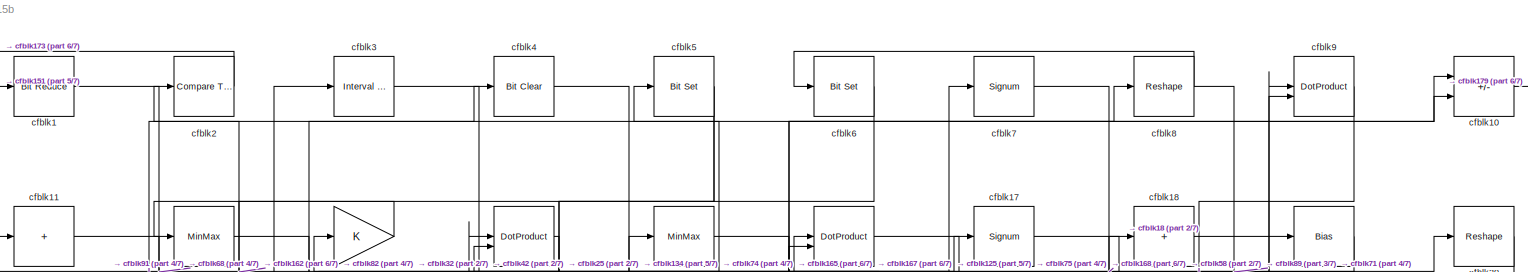
[diagram: root canvas - part 1/7, full width, top band]
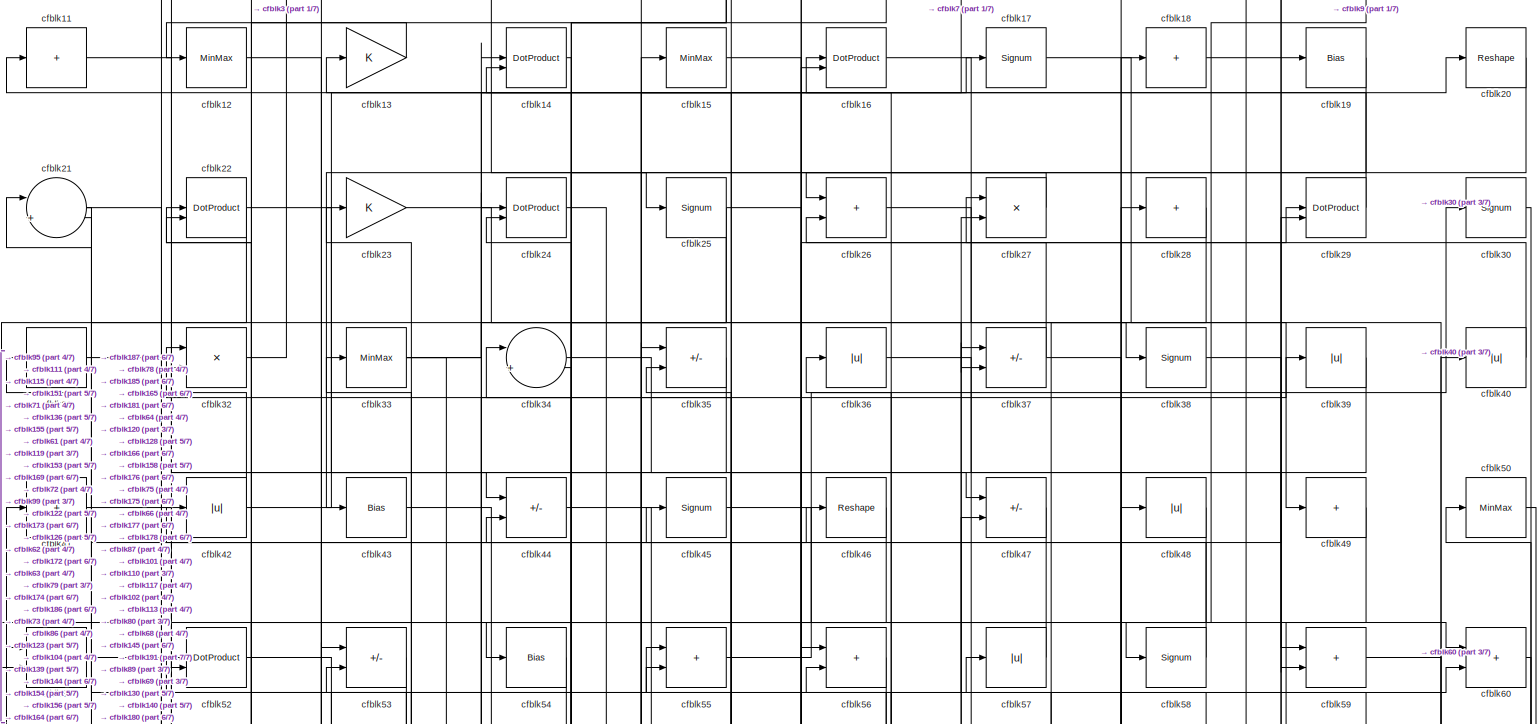
[diagram: root canvas - part 2/7, full width, top band]
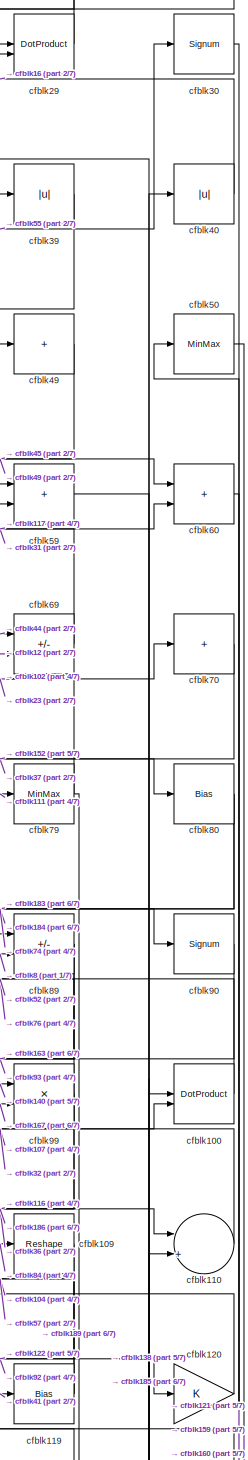
[diagram: root canvas - part 3/7, middle right region]
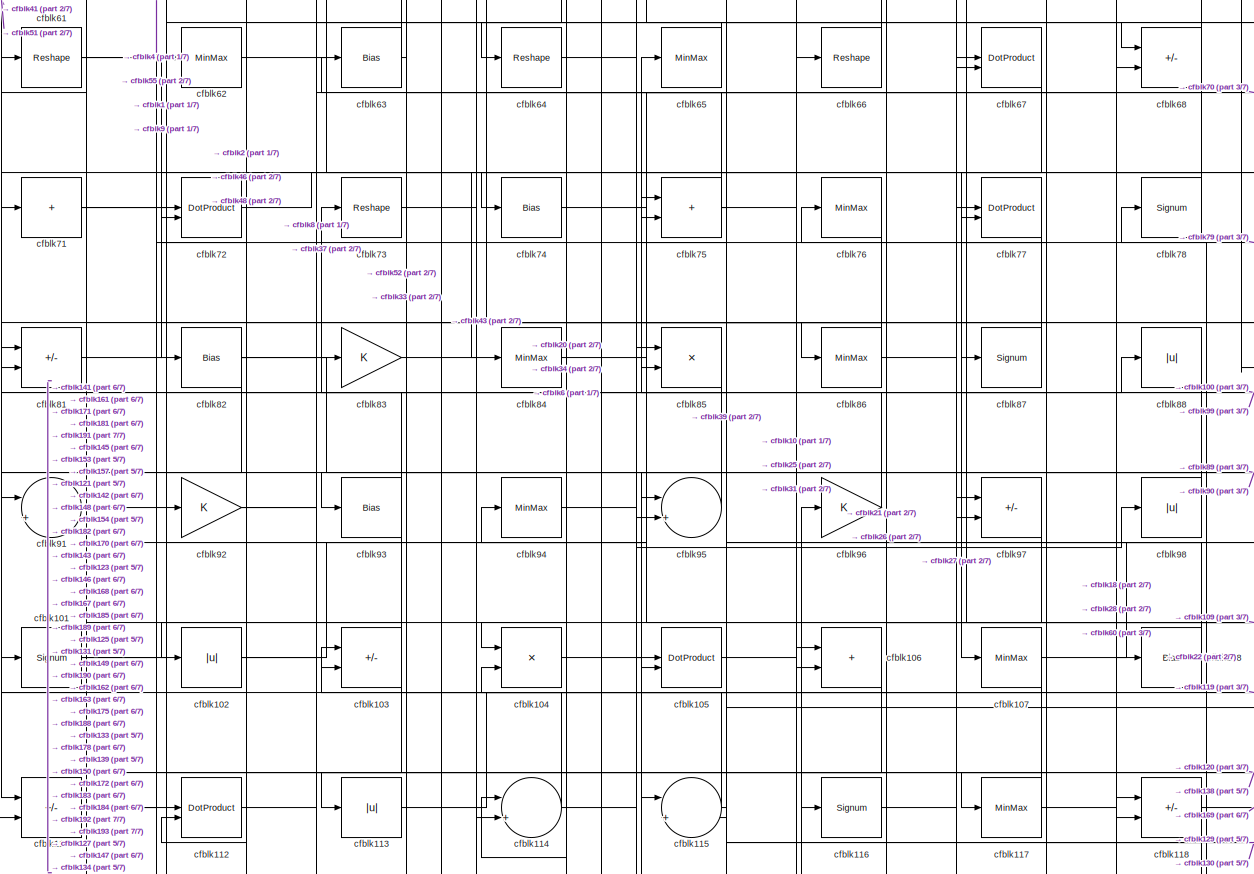
[diagram: root canvas - part 4/7, full width, middle band]
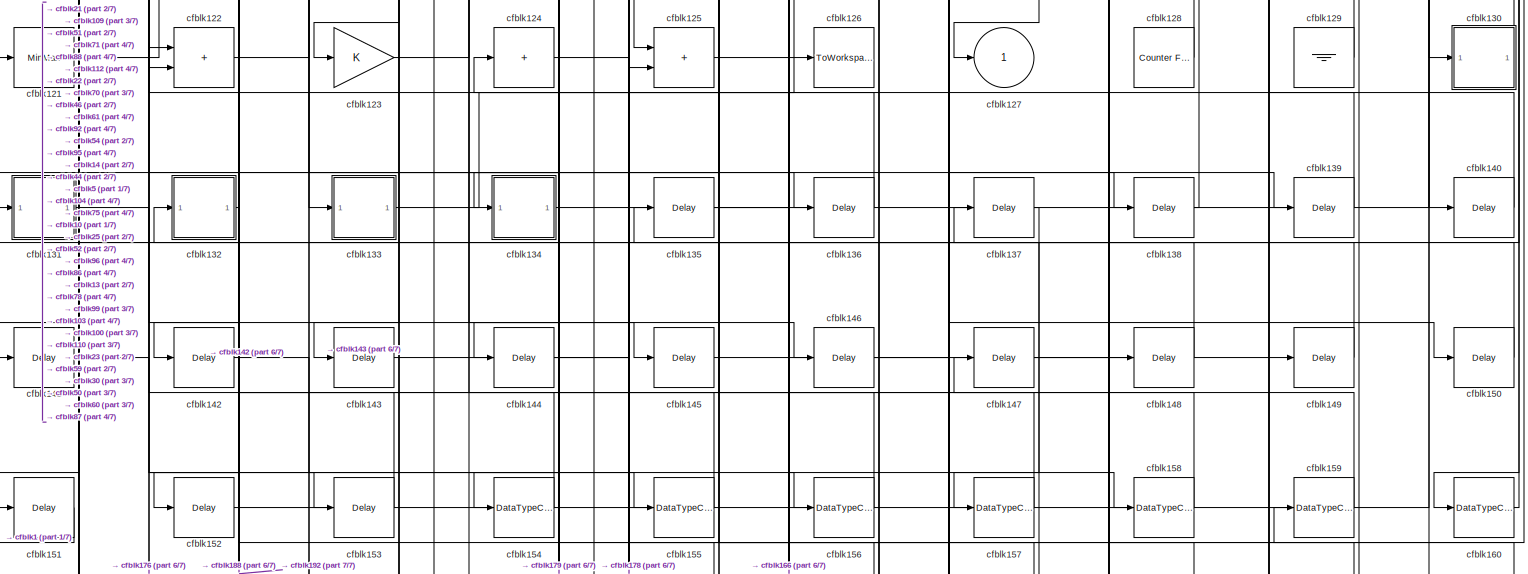
[diagram: root canvas - part 5/7, full width, bottom band]
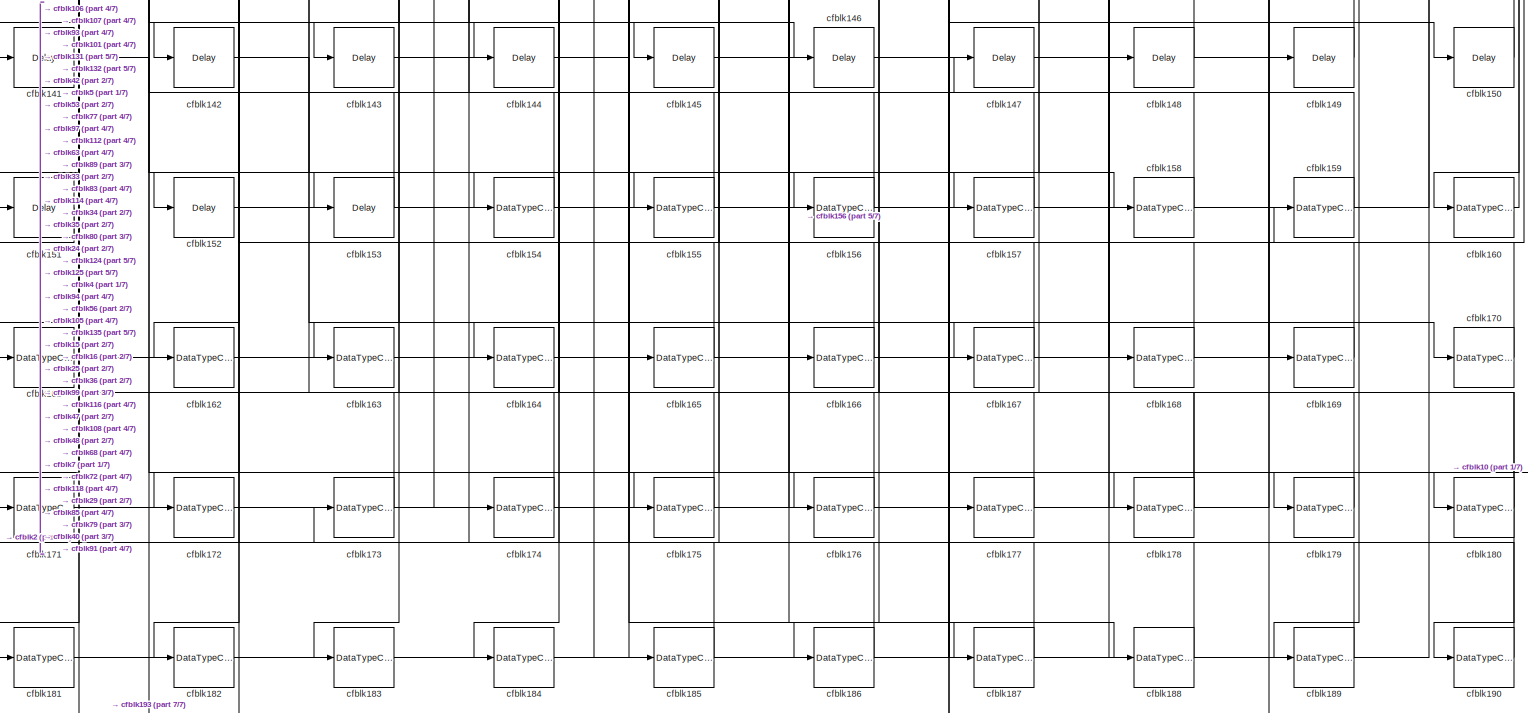
[diagram: root canvas - part 6/7, full width, bottom band]
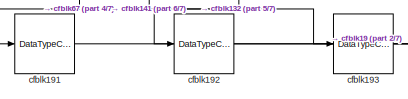
[diagram: root canvas - part 7/7, bottom left region]
MODEL slx_73f2b094a15b
KIND model
CONFIG AbsTol = auto
CONFIG EnableMultiTasking = off
CONFIG FixedStep = auto
CONFIG MaxStep = auto
CONFIG MinStep = auto
CONFIG RelTol = 1e-3
CONFIG SampleTimeConstraint = Unconstrained
CONFIG SolverName = VariableStepAuto
CONFIG StartTime = 0.0
CONFIG StopTime = 10.0
BLOCK [Reference] cfblk1  REF=hdlsllib/Logic and Bit
Operations/Bit Reduce
  SourceBlock = hdlsllib/Logic and Bit\nOperations/Bit Reduce
  SourceType = Bit Reduce
BLOCK [Sum] cfblk10
  IconShape = rectangular
  Inputs = +-
BLOCK [DotProduct] cfblk100
  OutDataTypeStr = Inherit: Inherit via internal rule
BLOCK [Signum] cfblk101
BLOCK [Abs] cfblk102
  SaturateOnIntegerOverflow = off
BLOCK [Sum] cfblk103
  IconShape = rectangular
  Inputs = +-
BLOCK [Product] cfblk104
  Inputs = */
  RndMeth = Zero
  SaturateOnIntegerOverflow = on
BLOCK [DotProduct] cfblk105
  OutDataTypeStr = Inherit: Inherit via internal rule
BLOCK [Sum] cfblk106
  IconShape = rectangular
BLOCK [MinMax] cfblk107
BLOCK [Bias] cfblk108
  Bias = 0.0
  SaturateOnIntegerOverflow = off
BLOCK [Reshape] cfblk109
BLOCK [Sum] cfblk11
  IconShape = rectangular
  Inputs = +
BLOCK [Sum] cfblk110
  Inputs = |++
BLOCK [Sum] cfblk111
  IconShape = rectangular
  Inputs = +-
BLOCK [DotProduct] cfblk112
  OutDataTypeStr = Inherit: Inherit via internal rule
BLOCK [Abs] cfblk113
  SaturateOnIntegerOverflow = off
BLOCK [Sum] cfblk114
  Inputs = |++
BLOCK [Sum] cfblk115
  Inputs = |++
BLOCK [Signum] cfblk116
BLOCK [MinMax] cfblk117
BLOCK [Sum] cfblk118
  IconShape = rectangular
  Inputs = +-
BLOCK [Bias] cfblk119
  Bias = 0.0
  SaturateOnIntegerOverflow = off
BLOCK [MinMax] cfblk12
BLOCK [Gain] cfblk120
BLOCK [MinMax] cfblk121
BLOCK [Sum] cfblk122
  IconShape = rectangular
BLOCK [Gain] cfblk123
BLOCK [Sum] cfblk124
  IconShape = rectangular
  Inputs = +
BLOCK [Sum] cfblk125
  IconShape = rectangular
BLOCK [ToWorkspace] cfblk126
  MaxDataPoints = inf
  SampleTime = -1
  SaveFormat = Timeseries
  VariableName = simout
BLOCK [Outport] cfblk127
  VectorParamsAs1DForOutWhenUnconnected = off
BLOCK [Reference] cfblk128  REF=hdlsllib/Sources/Counter
Free-Running
  SourceBlock = hdlsllib/Sources/Counter\nFree-Running
  SourceType = Counter Free-Running
BLOCK [Ground] cfblk129
BLOCK [Gain] cfblk13
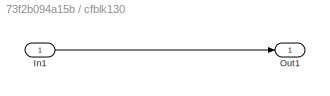
BLOCK [SubSystem] cfblk130
  LibrarySourceBlock = hdlsllib/Ports &\nSubsystems/Subsystem
BLOCK [Inport] cfblk130/In1
BLOCK [Outport] cfblk130/Out1
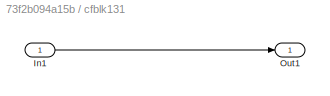
BLOCK [SubSystem] cfblk131
  LibrarySourceBlock = hdlsllib/Ports &\nSubsystems/Subsystem
BLOCK [Inport] cfblk131/In1
BLOCK [Outport] cfblk131/Out1
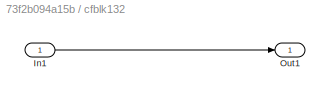
BLOCK [SubSystem] cfblk132
  LibrarySourceBlock = hdlsllib/Ports &\nSubsystems/Subsystem
BLOCK [Inport] cfblk132/In1
BLOCK [Outport] cfblk132/Out1
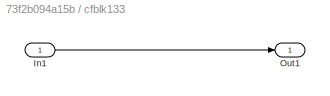
BLOCK [SubSystem] cfblk133
  LibrarySourceBlock = hdlsllib/Ports &\nSubsystems/Subsystem
BLOCK [Inport] cfblk133/In1
BLOCK [Outport] cfblk133/Out1
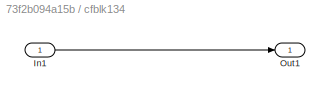
BLOCK [SubSystem] cfblk134
  LibrarySourceBlock = hdlsllib/Ports &\nSubsystems/Subsystem
BLOCK [Inport] cfblk134/In1
BLOCK [Outport] cfblk134/Out1
BLOCK [Delay] cfblk135
  InputPortMap = u0
  SampleTime = 1
BLOCK [Delay] cfblk136
  InputPortMap = u0
  SampleTime = 1
BLOCK [Delay] cfblk137
  InputPortMap = u0
  SampleTime = 1
BLOCK [Delay] cfblk138
  InputPortMap = u0
  SampleTime = 1
BLOCK [Delay] cfblk139
  InputPortMap = u0
  SampleTime = 1
BLOCK [DotProduct] cfblk14
  OutDataTypeStr = Inherit: Inherit via internal rule
BLOCK [Delay] cfblk140
  InputPortMap = u0
  SampleTime = 1
BLOCK [Delay] cfblk141
  InputPortMap = u0
  SampleTime = 1
BLOCK [Delay] cfblk142
  InputPortMap = u0
  SampleTime = 1
BLOCK [Delay] cfblk143
  InputPortMap = u0
  SampleTime = 1
BLOCK [Delay] cfblk144
  InputPortMap = u0
  SampleTime = 1
BLOCK [Delay] cfblk145
  InputPortMap = u0
  SampleTime = 1
BLOCK [Delay] cfblk146
  InputPortMap = u0
  SampleTime = 1
BLOCK [Delay] cfblk147
  InputPortMap = u0
  SampleTime = 1
BLOCK [Delay] cfblk148
  InputPortMap = u0
  SampleTime = 1
BLOCK [Delay] cfblk149
  InputPortMap = u0
  SampleTime = 1
BLOCK [MinMax] cfblk15
BLOCK [Delay] cfblk150
  InputPortMap = u0
  SampleTime = 1
BLOCK [Delay] cfblk151
  InputPortMap = u0
  SampleTime = 1
BLOCK [Delay] cfblk152
  InputPortMap = u0
  SampleTime = 1
BLOCK [Delay] cfblk153
  InputPortMap = u0
  SampleTime = 1
BLOCK [DataTypeConversion] cfblk154
  OutDataTypeStr = uint8
  RndMeth = Floor
  SaturateOnIntegerOverflow = off
BLOCK [DataTypeConversion] cfblk155
  OutDataTypeStr = uint8
  RndMeth = Floor
  SaturateOnIntegerOverflow = off
BLOCK [DataTypeConversion] cfblk156
  OutDataTypeStr = uint8
  RndMeth = Floor
  SaturateOnIntegerOverflow = off
BLOCK [DataTypeConversion] cfblk157
  OutDataTypeStr = uint8
  RndMeth = Floor
  SaturateOnIntegerOverflow = off
BLOCK [DataTypeConversion] cfblk158
  OutDataTypeStr = uint8
  RndMeth = Floor
  SaturateOnIntegerOverflow = off
BLOCK [DataTypeConversion] cfblk159
  OutDataTypeStr = uint8
  RndMeth = Floor
  SaturateOnIntegerOverflow = off
BLOCK [DotProduct] cfblk16
  OutDataTypeStr = Inherit: Inherit via internal rule
BLOCK [DataTypeConversion] cfblk160
  OutDataTypeStr = uint8
  RndMeth = Floor
  SaturateOnIntegerOverflow = off
BLOCK [DataTypeConversion] cfblk161
  OutDataTypeStr = uint8
  RndMeth = Floor
  SaturateOnIntegerOverflow = off
BLOCK [DataTypeConversion] cfblk162
  OutDataTypeStr = uint8
  RndMeth = Floor
  SaturateOnIntegerOverflow = off
BLOCK [DataTypeConversion] cfblk163
  OutDataTypeStr = uint8
  RndMeth = Floor
  SaturateOnIntegerOverflow = off
BLOCK [DataTypeConversion] cfblk164
  OutDataTypeStr = uint8
  RndMeth = Floor
  SaturateOnIntegerOverflow = off
BLOCK [DataTypeConversion] cfblk165
  OutDataTypeStr = uint8
  RndMeth = Floor
  SaturateOnIntegerOverflow = off
BLOCK [DataTypeConversion] cfblk166
  OutDataTypeStr = uint8
  RndMeth = Floor
  SaturateOnIntegerOverflow = off
BLOCK [DataTypeConversion] cfblk167
  RndMeth = Floor
  SaturateOnIntegerOverflow = off
BLOCK [DataTypeConversion] cfblk168
  OutDataTypeStr = uint8
  RndMeth = Floor
  SaturateOnIntegerOverflow = off
BLOCK [DataTypeConversion] cfblk169
  OutDataTypeStr = uint8
  RndMeth = Floor
  SaturateOnIntegerOverflow = off
BLOCK [Signum] cfblk17
BLOCK [DataTypeConversion] cfblk170
  OutDataTypeStr = uint8
  RndMeth = Floor
  SaturateOnIntegerOverflow = off
BLOCK [DataTypeConversion] cfblk171
  OutDataTypeStr = uint8
  RndMeth = Floor
  SaturateOnIntegerOverflow = off
BLOCK [DataTypeConversion] cfblk172
  RndMeth = Floor
  SaturateOnIntegerOverflow = off
BLOCK [DataTypeConversion] cfblk173
  OutDataTypeStr = uint8
  RndMeth = Floor
  SaturateOnIntegerOverflow = off
BLOCK [DataTypeConversion] cfblk174
  OutDataTypeStr = uint8
  RndMeth = Floor
  SaturateOnIntegerOverflow = off
BLOCK [DataTypeConversion] cfblk175
  RndMeth = Floor
  SaturateOnIntegerOverflow = off
BLOCK [DataTypeConversion] cfblk176
  OutDataTypeStr = uint8
  RndMeth = Floor
  SaturateOnIntegerOverflow = off
BLOCK [DataTypeConversion] cfblk177
  OutDataTypeStr = uint8
  RndMeth = Floor
  SaturateOnIntegerOverflow = off
BLOCK [DataTypeConversion] cfblk178
  RndMeth = Floor
  SaturateOnIntegerOverflow = off
BLOCK [DataTypeConversion] cfblk179
  OutDataTypeStr = uint8
  RndMeth = Floor
  SaturateOnIntegerOverflow = off
BLOCK [Sum] cfblk18
  IconShape = rectangular
  Inputs = +
BLOCK [DataTypeConversion] cfblk180
  RndMeth = Floor
  SaturateOnIntegerOverflow = off
BLOCK [DataTypeConversion] cfblk181
  OutDataTypeStr = uint8
  RndMeth = Floor
  SaturateOnIntegerOverflow = off
BLOCK [DataTypeConversion] cfblk182
  OutDataTypeStr = uint8
  RndMeth = Floor
  SaturateOnIntegerOverflow = off
BLOCK [DataTypeConversion] cfblk183
  OutDataTypeStr = uint8
  RndMeth = Floor
  SaturateOnIntegerOverflow = off
BLOCK [DataTypeConversion] cfblk184
  OutDataTypeStr = uint8
  RndMeth = Floor
  SaturateOnIntegerOverflow = off
BLOCK [DataTypeConversion] cfblk185
  RndMeth = Floor
  SaturateOnIntegerOverflow = off
BLOCK [DataTypeConversion] cfblk186
  OutDataTypeStr = uint8
  RndMeth = Floor
  SaturateOnIntegerOverflow = off
BLOCK [DataTypeConversion] cfblk187
  OutDataTypeStr = uint8
  RndMeth = Floor
  SaturateOnIntegerOverflow = off
BLOCK [DataTypeConversion] cfblk188
  OutDataTypeStr = uint8
  RndMeth = Floor
  SaturateOnIntegerOverflow = off
BLOCK [DataTypeConversion] cfblk189
  OutDataTypeStr = uint8
  RndMeth = Floor
  SaturateOnIntegerOverflow = off
BLOCK [Bias] cfblk19
  Bias = 0.0
  SaturateOnIntegerOverflow = off
BLOCK [DataTypeConversion] cfblk190
  OutDataTypeStr = uint8
  RndMeth = Floor
  SaturateOnIntegerOverflow = off
BLOCK [DataTypeConversion] cfblk191
  OutDataTypeStr = uint8
  RndMeth = Floor
  SaturateOnIntegerOverflow = off
BLOCK [DataTypeConversion] cfblk192
  OutDataTypeStr = uint8
  RndMeth = Floor
  SaturateOnIntegerOverflow = off
BLOCK [DataTypeConversion] cfblk193
  OutDataTypeStr = uint8
  RndMeth = Floor
  SaturateOnIntegerOverflow = off
BLOCK [Reference] cfblk2  REF=hdlsllib/Logic and Bit
Operations/Compare
To Constant
  SourceBlock = hdlsllib/Logic and Bit\nOperations/Compare\nTo Constant
  SourceType = Compare To Constant
BLOCK [Reshape] cfblk20
BLOCK [Sum] cfblk21
  Inputs = |++
BLOCK [DotProduct] cfblk22
  OutDataTypeStr = Inherit: Inherit via internal rule
BLOCK [Gain] cfblk23
BLOCK [DotProduct] cfblk24
  OutDataTypeStr = Inherit: Inherit via internal rule
BLOCK [Signum] cfblk25
BLOCK [Sum] cfblk26
  IconShape = rectangular
BLOCK [Product] cfblk27
  Inputs = */
  RndMeth = Zero
  SaturateOnIntegerOverflow = on
BLOCK [Sum] cfblk28
  IconShape = rectangular
  Inputs = +
BLOCK [DotProduct] cfblk29
  OutDataTypeStr = Inherit: Inherit via internal rule
BLOCK [Reference] cfblk3  REF=hdlsllib/Logic and Bit
Operations/Interval Test
  SourceBlock = hdlsllib/Logic and Bit\nOperations/Interval Test
  SourceType = Interval Test
BLOCK [Signum] cfblk30
BLOCK [Sum] cfblk31
  IconShape = rectangular
  Inputs = +
BLOCK [Product] cfblk32
  Inputs = */
  RndMeth = Zero
  SaturateOnIntegerOverflow = on
BLOCK [MinMax] cfblk33
BLOCK [Sum] cfblk34
  Inputs = |++
BLOCK [Sum] cfblk35
  IconShape = rectangular
  Inputs = +-
BLOCK [Abs] cfblk36
  SaturateOnIntegerOverflow = off
BLOCK [Sum] cfblk37
  IconShape = rectangular
  Inputs = +-
BLOCK [Signum] cfblk38
BLOCK [Abs] cfblk39
  SaturateOnIntegerOverflow = off
BLOCK [Reference] cfblk4  REF=simulink/Logic and Bit
Operations/Bit Clear
  LibrarySourceBlock = hdlsllib/Logic and Bit\nOperations/Bit Clear
  SourceBlock = simulink/Logic and Bit\nOperations/Bit Clear
  SourceType = Bit Clear
BLOCK [Abs] cfblk40
  SaturateOnIntegerOverflow = off
BLOCK [Sum] cfblk41
  IconShape = rectangular
  Inputs = +
BLOCK [Abs] cfblk42
  SaturateOnIntegerOverflow = off
BLOCK [Bias] cfblk43
  Bias = 0.0
  SaturateOnIntegerOverflow = off
BLOCK [Sum] cfblk44
  IconShape = rectangular
  Inputs = +-
BLOCK [Signum] cfblk45
BLOCK [Reshape] cfblk46
BLOCK [Sum] cfblk47
  IconShape = rectangular
  Inputs = +-
BLOCK [Abs] cfblk48
  SaturateOnIntegerOverflow = off
BLOCK [Sum] cfblk49
  IconShape = rectangular
  Inputs = +
BLOCK [Reference] cfblk5  REF=simulink/Logic and Bit
Operations/Bit Set
  LibrarySourceBlock = hdlsllib/Logic and Bit\nOperations/Bit Set
  SourceBlock = simulink/Logic and Bit\nOperations/Bit Set
  SourceType = Bit Set
BLOCK [MinMax] cfblk50
BLOCK [Sum] cfblk51
  IconShape = rectangular
BLOCK [DotProduct] cfblk52
  OutDataTypeStr = Inherit: Inherit via internal rule
BLOCK [Sum] cfblk53
  IconShape = rectangular
  Inputs = +-
BLOCK [Bias] cfblk54
  Bias = 0.0
  SaturateOnIntegerOverflow = off
BLOCK [Sum] cfblk55
  IconShape = rectangular
BLOCK [Sum] cfblk56
  IconShape = rectangular
BLOCK [Abs] cfblk57
  SaturateOnIntegerOverflow = off
BLOCK [Signum] cfblk58
BLOCK [Sum] cfblk59
  IconShape = rectangular
BLOCK [Reference] cfblk6  REF=simulink/Logic and Bit
Operations/Bit Set
  LibrarySourceBlock = hdlsllib/Logic and Bit\nOperations/Bit Set
  SourceBlock = simulink/Logic and Bit\nOperations/Bit Set
  SourceType = Bit Set
BLOCK [Sum] cfblk60
  IconShape = rectangular
BLOCK [Reshape] cfblk61
BLOCK [MinMax] cfblk62
BLOCK [Bias] cfblk63
  Bias = 0.0
  SaturateOnIntegerOverflow = off
BLOCK [Reshape] cfblk64
BLOCK [MinMax] cfblk65
BLOCK [Reshape] cfblk66
BLOCK [DotProduct] cfblk67
  OutDataTypeStr = Inherit: Inherit via internal rule
BLOCK [Sum] cfblk68
  IconShape = rectangular
  Inputs = +-
BLOCK [Sum] cfblk69
  IconShape = rectangular
  Inputs = +-
BLOCK [Signum] cfblk7
BLOCK [Sum] cfblk70
  IconShape = rectangular
  Inputs = +
BLOCK [Sum] cfblk71
  IconShape = rectangular
  Inputs = +
BLOCK [DotProduct] cfblk72
  OutDataTypeStr = Inherit: Inherit via internal rule
BLOCK [Reshape] cfblk73
BLOCK [Bias] cfblk74
  Bias = 0.0
  SaturateOnIntegerOverflow = off
BLOCK [Sum] cfblk75
  IconShape = rectangular
BLOCK [MinMax] cfblk76
BLOCK [DotProduct] cfblk77
  OutDataTypeStr = Inherit: Inherit via internal rule
BLOCK [Signum] cfblk78
BLOCK [MinMax] cfblk79
BLOCK [Reshape] cfblk8
BLOCK [Bias] cfblk80
  Bias = 0.0
  SaturateOnIntegerOverflow = off
BLOCK [Sum] cfblk81
  IconShape = rectangular
  Inputs = +-
BLOCK [Bias] cfblk82
  Bias = 0.0
  SaturateOnIntegerOverflow = off
BLOCK [Gain] cfblk83
BLOCK [MinMax] cfblk84
BLOCK [Product] cfblk85
  Inputs = */
  RndMeth = Zero
  SaturateOnIntegerOverflow = on
BLOCK [MinMax] cfblk86
BLOCK [Signum] cfblk87
BLOCK [Abs] cfblk88
  SaturateOnIntegerOverflow = off
BLOCK [Sum] cfblk89
  IconShape = rectangular
  Inputs = +-
BLOCK [DotProduct] cfblk9
  OutDataTypeStr = Inherit: Inherit via internal rule
BLOCK [Signum] cfblk90
BLOCK [Sum] cfblk91
  Inputs = |++
BLOCK [Gain] cfblk92
BLOCK [Bias] cfblk93
  Bias = 0.0
  SaturateOnIntegerOverflow = off
BLOCK [MinMax] cfblk94
BLOCK [Sum] cfblk95
  Inputs = |++
BLOCK [Gain] cfblk96
BLOCK [Sum] cfblk97
  IconShape = rectangular
  Inputs = +-
BLOCK [Abs] cfblk98
  SaturateOnIntegerOverflow = off
BLOCK [Product] cfblk99
  Inputs = */
  RndMeth = Zero
  SaturateOnIntegerOverflow = on
LINE cfblk100:1 -> cfblk76:1
NET cfblk101:1 -> cfblk145:1, cfblk27:2
NET cfblk102:1 -> cfblk28:1, cfblk70:1
NET cfblk103:1 -> cfblk113:1, cfblk61:1
LINE cfblk104:1 -> cfblk125:1
LINE cfblk105:1 -> cfblk188:1
LINE cfblk106:1 -> cfblk161:1
NET cfblk107:1 -> cfblk100:2, cfblk103:2, cfblk171:1
NET cfblk108:1 -> cfblk63:1, cfblk77:2
LINE cfblk109:1 -> cfblk122:2
LINE cfblk10:1 -> cfblk179:1
LINE cfblk110:1 -> cfblk32:1
NET cfblk111:1 -> cfblk79:1, cfblk92:1
LINE cfblk112:1 -> cfblk170:1
LINE cfblk113:1 -> cfblk18:1
NET cfblk114:1 -> cfblk83:1, cfblk98:1
NET cfblk115:1 -> cfblk41:1, cfblk75:2
LINE cfblk116:1 -> cfblk150:1
NET cfblk117:1 -> cfblk55:1, cfblk60:2
LINE cfblk118:1 -> cfblk169:1
NET cfblk119:1 -> cfblk104:2, cfblk57:1
LINE cfblk11:1 -> cfblk44:1
LINE cfblk120:1 -> cfblk45:1
LINE cfblk121:1 -> cfblk88:1
LINE cfblk122:1 -> cfblk46:1
LINE cfblk123:1 -> cfblk95:1
LINE cfblk124:1 -> cfblk178:1
LINE cfblk125:1 -> cfblk10:1
LINE cfblk128:1 -> cfblk13:1
LINE cfblk129:1 -> cfblk103:1
LINE cfblk12:1 -> cfblk69:2
LINE cfblk130/In1:1 -> cfblk130/Out1:1
LINE cfblk130:1 -> cfblk87:1
LINE cfblk131/In1:1 -> cfblk131/Out1:1
LINE cfblk131:1 -> cfblk176:1
LINE cfblk132/In1:1 -> cfblk132/Out1:1
LINE cfblk132:1 -> cfblk192:1
LINE cfblk133/In1:1 -> cfblk133/Out1:1
LINE cfblk133:1 -> cfblk96:1
LINE cfblk134/In1:1 -> cfblk134/Out1:1
LINE cfblk134:1 -> cfblk78:1
LINE cfblk135:1 -> cfblk166:1
LINE cfblk136:1 -> cfblk122:1
LINE cfblk137:1 -> cfblk157:1
LINE cfblk138:1 -> cfblk110:2
LINE cfblk139:1 -> cfblk44:2
LINE cfblk13:1 -> cfblk12:1
LINE cfblk140:1 -> cfblk99:1
LINE cfblk141:1 -> cfblk193:1
LINE cfblk142:1 -> cfblk156:1
LINE cfblk143:1 -> cfblk125:2
LINE cfblk144:1 -> cfblk187:1
LINE cfblk145:1 -> cfblk29:2
LINE cfblk146:1 -> cfblk177:1
LINE cfblk147:1 -> cfblk68:2
LINE cfblk148:1 -> cfblk72:2
LINE cfblk149:1 -> cfblk85:2
LINE cfblk14:1 -> cfblk154:1
LINE cfblk150:1 -> cfblk91:2
LINE cfblk151:1 -> cfblk1:1
LINE cfblk152:1 -> cfblk100:1
LINE cfblk153:1 -> cfblk22:2
LINE cfblk154:1 -> cfblk112:2
LINE cfblk155:1 -> cfblk14:1
LINE cfblk156:1 -> cfblk14:2
LINE cfblk157:1 -> cfblk112:1
LINE cfblk158:1 -> cfblk137:1
LINE cfblk159:1 -> cfblk135:1
LINE cfblk15:1 -> cfblk180:1
LINE cfblk160:1 -> cfblk50:1
LINE cfblk161:1 -> cfblk148:1
LINE cfblk162:1 -> cfblk106:1
LINE cfblk163:1 -> cfblk106:2
LINE cfblk164:1 -> cfblk48:1
LINE cfblk165:1 -> cfblk35:1
LINE cfblk166:1 -> cfblk35:2
NET cfblk167:1 -> cfblk5:1, cfblk99:2
LINE cfblk168:1 -> cfblk94:1
LINE cfblk169:1 -> cfblk42:1
LINE cfblk16:1 -> cfblk38:1
LINE cfblk170:1 -> cfblk118:1
LINE cfblk171:1 -> cfblk118:2
NET cfblk172:1 -> cfblk149:1, cfblk77:1
LINE cfblk173:1 -> cfblk53:1
LINE cfblk174:1 -> cfblk53:2
NET cfblk175:1 -> cfblk114:1, cfblk16:2
LINE cfblk176:1 -> cfblk56:1
LINE cfblk177:1 -> cfblk56:2
NET cfblk178:1 -> cfblk101:1, cfblk36:1
LINE cfblk179:1 -> cfblk124:1
LINE cfblk17:1 -> cfblk49:1
NET cfblk180:1 -> cfblk147:1, cfblk190:1, cfblk34:2
LINE cfblk181:1 -> cfblk15:1
LINE cfblk182:1 -> cfblk108:1
LINE cfblk183:1 -> cfblk97:1
LINE cfblk184:1 -> cfblk97:2
NET cfblk185:1 -> cfblk40:1, cfblk47:2, cfblk85:1
LINE cfblk186:1 -> cfblk24:1
LINE cfblk187:1 -> cfblk24:2
LINE cfblk188:1 -> cfblk132:1
LINE cfblk189:1 -> cfblk105:1
LINE cfblk18:1 -> cfblk9:1
LINE cfblk190:1 -> cfblk105:2
LINE cfblk191:1 -> cfblk19:1
LINE cfblk192:1 -> cfblk67:1
LINE cfblk193:1 -> cfblk67:2
LINE cfblk19:1 -> cfblk43:1
LINE cfblk1:1 -> cfblk68:1
LINE cfblk20:1 -> cfblk104:1
NET cfblk21:1 -> cfblk151:1, cfblk155:1
NET cfblk22:1 -> cfblk71:1, cfblk95:2
LINE cfblk23:1 -> cfblk130:1
LINE cfblk24:1 -> cfblk185:1
NET cfblk25:1 -> cfblk111:2, cfblk144:1, cfblk158:1
LINE cfblk26:1 -> cfblk59:1
LINE cfblk27:1 -> cfblk26:1
LINE cfblk28:1 -> cfblk117:1
LINE cfblk29:1 -> cfblk11:1
LINE cfblk2:1 -> cfblk173:1
LINE cfblk30:1 -> cfblk160:1
LINE cfblk31:1 -> cfblk66:1
LINE cfblk32:1 -> cfblk3:1
NET cfblk33:1 -> cfblk174:1, cfblk17:1, cfblk37:2
LINE cfblk34:1 -> cfblk47:1
LINE cfblk35:1 -> cfblk164:1
LINE cfblk36:1 -> cfblk110:1
NET cfblk37:1 -> cfblk27:1, cfblk80:1
LINE cfblk38:1 -> cfblk59:2
LINE cfblk39:1 -> cfblk115:2
LINE cfblk3:1 -> cfblk25:1
LINE cfblk40:1 -> cfblk16:1
LINE cfblk41:1 -> cfblk119:1
NET cfblk42:1 -> cfblk32:2, cfblk7:1
LINE cfblk43:1 -> cfblk86:1
LINE cfblk44:1 -> cfblk69:1
LINE cfblk45:1 -> cfblk60:1
LINE cfblk46:1 -> cfblk102:1
LINE cfblk47:1 -> cfblk51:2
LINE cfblk48:1 -> cfblk72:1
LINE cfblk49:1 -> cfblk89:1
LINE cfblk4:1 -> cfblk165:1
LINE cfblk50:1 -> cfblk159:1
LINE cfblk51:1 -> cfblk136:1
LINE cfblk52:1 -> cfblk126:1
LINE cfblk53:1 -> cfblk172:1
LINE cfblk54:1 -> cfblk123:1
NET cfblk55:1 -> cfblk29:1, cfblk30:1
LINE cfblk56:1 -> cfblk175:1
LINE cfblk57:1 -> cfblk54:1
LINE cfblk58:1 -> cfblk21:2
LINE cfblk59:1 -> cfblk140:1
NET cfblk5:1 -> cfblk134:1, cfblk162:1
LINE cfblk60:1 -> cfblk121:1
NET cfblk61:1 -> cfblk133:1, cfblk55:2
LINE cfblk62:1 -> cfblk37:1
NET cfblk63:1 -> cfblk143:1, cfblk52:1
LINE cfblk64:1 -> cfblk20:1
LINE cfblk65:1 -> cfblk64:1
LINE cfblk66:1 -> cfblk21:1
LINE cfblk67:1 -> cfblk191:1
NET cfblk68:1 -> cfblk107:1, cfblk22:1, cfblk75:1
LINE cfblk69:1 -> cfblk31:1
LINE cfblk6:1 -> cfblk74:1
LINE cfblk70:1 -> cfblk152:1
NET cfblk71:1 -> cfblk153:1, cfblk9:2
LINE cfblk72:1 -> cfblk84:1
LINE cfblk73:1 -> cfblk39:1
LINE cfblk74:1 -> cfblk90:1
NET cfblk75:1 -> cfblk10:2, cfblk131:1, cfblk33:1
LINE cfblk76:1 -> cfblk82:1
NET cfblk77:1 -> cfblk141:1, cfblk142:1
LINE cfblk78:1 -> cfblk34:1
NET cfblk79:1 -> cfblk189:1, cfblk23:1
LINE cfblk7:1 -> cfblk168:1
NET cfblk80:1 -> cfblk183:1, cfblk184:1
LINE cfblk81:1 -> cfblk62:1
NET cfblk82:1 -> cfblk114:2, cfblk2:1, cfblk8:1, cfblk91:1
LINE cfblk83:1 -> cfblk146:1
LINE cfblk84:1 -> cfblk109:1
LINE cfblk85:1 -> cfblk115:1
NET cfblk86:1 -> cfblk139:1, cfblk81:1
LINE cfblk87:1 -> cfblk26:2
LINE cfblk88:1 -> cfblk127:1
NET cfblk89:1 -> cfblk163:1, cfblk93:1
NET cfblk8:1 -> cfblk6:1, cfblk89:2
LINE cfblk90:1 -> cfblk111:1
LINE cfblk91:1 -> cfblk4:1
NET cfblk92:1 -> cfblk120:1, cfblk138:1
NET cfblk93:1 -> cfblk181:1, cfblk81:2
LINE cfblk94:1 -> cfblk167:1
LINE cfblk95:1 -> cfblk51:1
LINE cfblk96:1 -> cfblk73:1
LINE cfblk97:1 -> cfblk182:1
LINE cfblk98:1 -> cfblk65:1
NET cfblk99:1 -> cfblk116:1, cfblk186:1, cfblk52:2
LINE cfblk9:1 -> cfblk58:1
note: NET lines group one-source signal fan-out (src -> all destinations, sorted); 1:1 wires keep LINE
